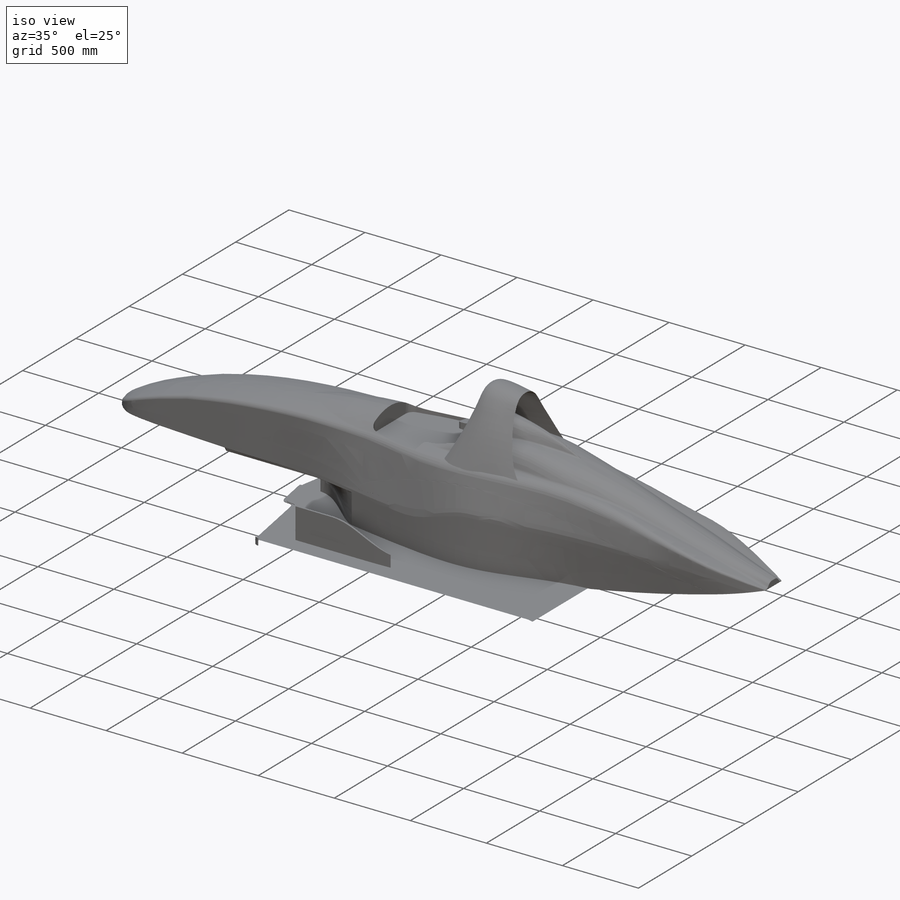
[diagram: iso view]
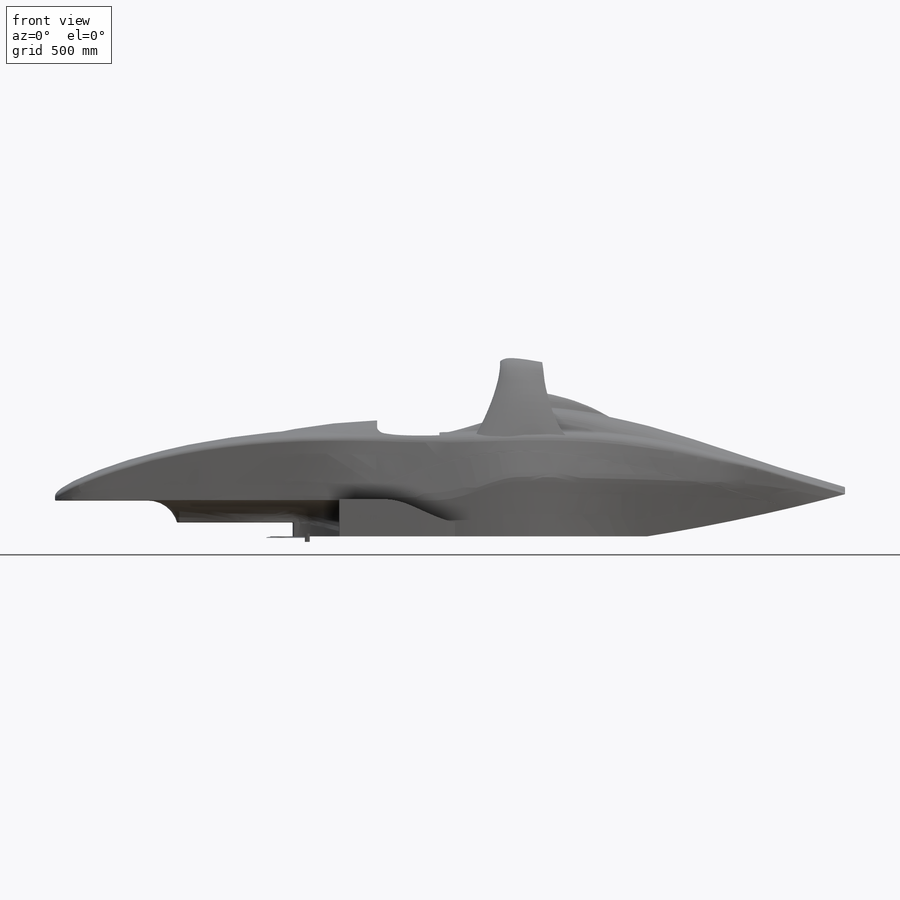
[diagram: front view]
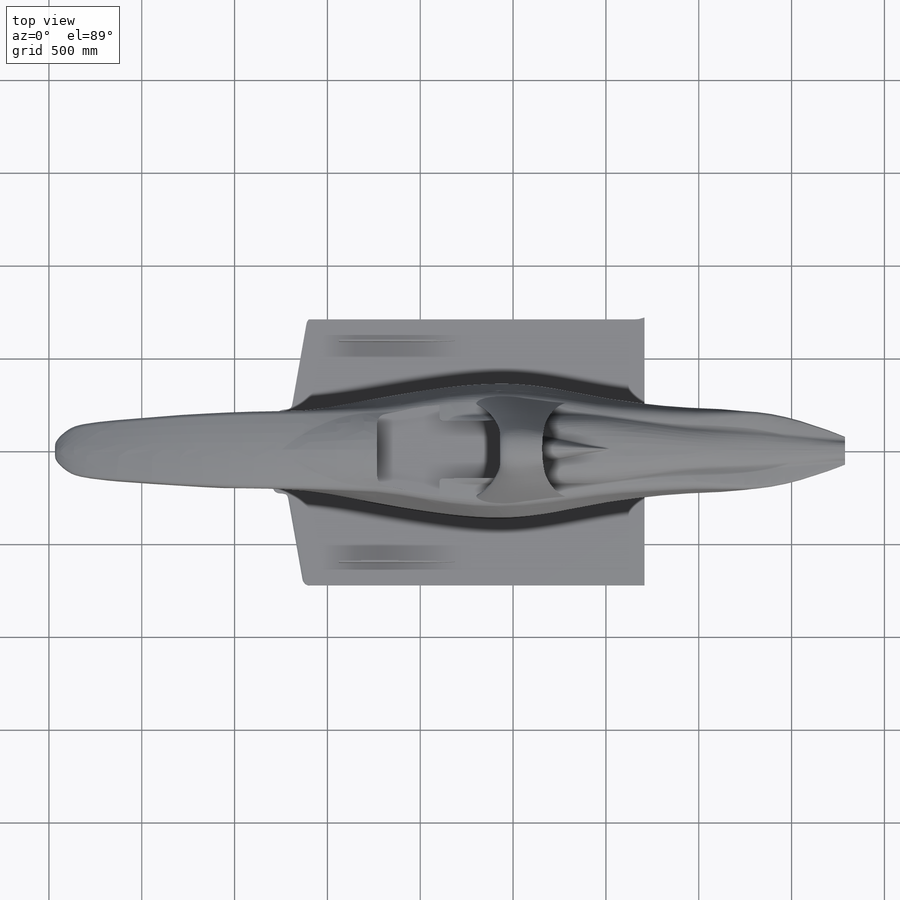
[diagram: top view]
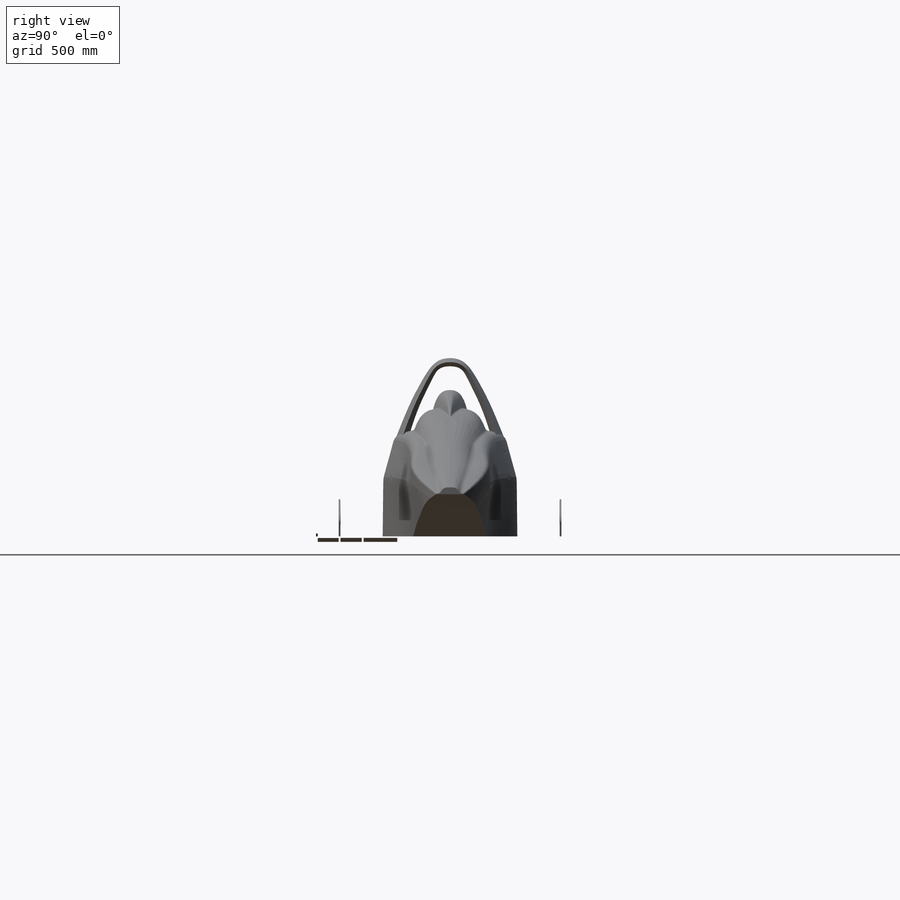
[diagram: right view]
SOLIDWORKS PART (.sldprt)
format: sldprt  version: not decoded by parser v0  size: 79,084,544 bytes
history: native  units: mm
features: sketch x117, plane x45, fillet x27, cut_extrude x22, extrude x15, sweep x13, mirror x9, shell x7, boolean_combine x4, surface_op x2, material x1, cut_revolve x1, revolve x1 (+20 scaffold rows collapsed; 9 parser-record rows omitted)
feature tree (293):
  scaffold x20  (default folders/planes/origin — collapsed)
  material  "6061-T6 (SS)"
  parser-record x9  (decoder bookkeeping rows leaked as tree rows — omitted from the tree; the rows remain in map.json)
  plane  "Plane0"  Offset=967mm
  plane  "Plane0A"  Offset=100mm
  plane  "Plane1"  Offset=0mm
  plane  "Plane2"  Offset=0mm
  plane  "Plane3"  Offset=0mm
  plane  "Plane4"  Offset=0mm
  plane  "Plane4A"  Offset=188.5mm
  plane  "Plane5"  Offset=0mm
  plane  "Plane5A"  Offset=235mm
  plane  "Plane6"  Offset=0mm
  plane  "Plane6A"  Offset=167mm
  plane  "Plane6B"  Offset=266.9mm
  plane  "Plane7"  Offset=533.8mm
  plane  "Plane14"  Offset=214.35mm
  plane  "Plane8"  Offset=0mm
  plane  "Plane10"  Offset=0mm
  plane  "Plane11"  Offset=775mm
  plane  "PlaneCarBottom"  Offset=48.8mm
  sketch  "Sketch0"  dims[D3=15.0mm D1=56.0mm D2=255.0mm D4=25.0mm D5=20.0mm]
  sketch  "Sketch1"  dims[c1.D2=12.7mm c1.D5=25.0mm c1.D1=56.0mm c2.D2=15.0mm c2.D3=25.0mm c3.D2=40.0mm c3.D4=65.0mm c3.D5=10.0mm c3.D1=15.0mm]
  sketch  "Sketch2"  dims[c1.D2=12.7mm c1.D3=~480.357143mm c1.D5=30.0mm c2.D2=195.0mm c2.D1=15.0mm c3.D2=20.0mm c3.D3=30.0mm c3.D4=285.0mm c3.D1=15.0mm]
  sketch  "Sketch3"  dims[c1.D2=12.7mm c1.D3=12.7mm c1.D5=35.0mm c1.D1=30.0mm c2.D2=20.0mm c2.D3=25.0mm c2.D4=56.0mm c2.D1=15.0mm]
  sketch  "Sketch4"  dims[c1.D2=12.7mm c1.D3=500.0mm c1.D5=500.0mm c1.D7=50.0mm c1.D8=100.0mm c2.D2=250.0mm c2.D4=0.0mm c2.D5=~496.84435mm c3.D4=15.0mm c3.D3=12.0mm c3.D1=56.0mm c3.D2=270.0mm c3.D5=220.0mm c3.D6=267.0mm c4.D1=15.0mm]
  sketch  "Sketch5"  dims[c1.D2=12.7mm c1.D3=12.7mm c1.D6=60.0mm c1.D7=100.0mm c2.D2=560.0mm c2.D3=23.0mm c2.D4=20.0mm c2.D1=15.0mm c2.D5=56.0mm c3.D1=12.7mm]
  sketch  "Sketch6"  dims[c1.D6=70.0mm c1.D7=100.0mm c1.D1=19.0mm c1.D2=34.0mm c2.D1=19.0mm c2.D2=24.0mm c2.D3=580.0mm c2.D4=550.0mm c2.D5=~288.883291mm c3.D3=565.0mm c3.D4=535.0mm c3.D1=56.0mm c3.D8=365.4mm c4.D1=17.0mm]
  sketch  "Sketch7"  dims[c1.D7=65.0mm c1.D8=100.0mm c1.D2=552.0mm c1.D3=537.0mm c1.D4=225.0mm c1.D1=269.0mm c1.D5=220.0mm c1.D6=56.0mm c1.D9=~365.403535mm c2.D3=595.8mm c2.D2=610.8mm c2.D1=12.7mm]
  sketch  "Sketch8"  dims[c1.D8=50.0mm c1.D9=100.0mm c1.D1=20.0mm c1.D2=205.0mm c2.D1=390.0mm c2.D3=405.0mm c2.D4=175.0mm c2.D5=15.0mm c2.D6=~229.207859mm c2.D7=~259.394203mm c3.D1=225.0mm c3.D5=394.0mm c3.D7=175.0mm c3.D3=399.0mm c4.D7=56.0mm]
  sketch  "Sketch9"  dims[c1.D6=19.0mm c1.D7=100.0mm c1.D2=120.0mm c1.D3=80.0mm c1.D4=~202.382796mm c1.D1=47.0mm c2.D4=195.0mm c2.D5=56.0mm c2.D1=12.7mm]
  sketch  "Sketch10"  dims[D4=6.0mm D1=75.0mm D2=70.0mm D3=56.0mm D5=220.8mm]
  sketch  "3DSketch2"  dims[c1.D1=~267.390004mm c1.D2=267.0mm c1.D3=267.0mm c1.D4=267.0mm c1.D5=~263.577764mm c1.D8=267.0mm c1.D6=267.0mm c1.D7=320.0mm c2.D5=128.0mm]
  plane  "PlaneBodyBottom"  Offset=58.8mm
  sketch  "Sketch129"
  cut_extrude  "CutBodyBottomPlane"  Depth=0.1mm
  sketch  "Sketch13"  dims[D1=133.0mm D2=141.0mm D3=70.0mm D4=251.0mm D5=275.0mm]
  cut_extrude  "Cut-ExtrudeBottom"  [1 undecoded]
  sketch  "Sketch19"  dims[D1=90.0mm D2=15.0mm D3=64.0mm]
  sketch  "Sketch15"  dims[c1.D2=599.0mm c1.D1=680.2mm c1.D3=203.0mm c2.D1=19.0mm]
  sketch  "Sketch16"  dims[D1=~517.40517mm]
  sketch  "Sketch17"  dims[D1=635.0mm]
  cut_revolve  "Cut-RevolveKeelNose"  Angle=90deg
  sketch  "Sketch24"
  sketch  "Sketch21"  dims[D1=3.0mm D2=3.0mm]
  sketch  "Sketch22"  dims[D1=3.0mm D2=3.0mm]
  sketch  "Sketch23"  dims[D1=251.122mm]
  sketch  "3DSketch4"
  plane  "PlaneDriverCoolingDuct"
  sketch  "SketchDriverCoolingDuctSides"  dims[D4=~66.36714mm D1=25.0mm D2=100.0mm D3=150.0mm]
  sketch  "Sketch81"  dims[D1=30.0mm]
  surface_op  "Surface-Extrude1"
  cut_extrude  "CutDriverCoolingDuct"  [1 undecoded]
  sketch  "Sketch25"
  cut_extrude  "Cut-ExtrudeBow"  [1 undecoded]
  sketch  "Sketch66"  dims[c1.D1=230.0mm c1.D2=205.0mm c2.D2=~1.109689deg c2.D3=~789.345485mm c3.D2=582.0mm c3.D3=684.0mm]
  sketch  "3DSketch14"
  sketch  "Sketch50"  dims[D1=535.0mm D2=216.0mm D3=65.0mm D4=90.0mm]
  sketch  "Sketch52"  dims[D1=535.0mm D2=80.0mm D3=216.0mm D4=65.0mm]
  sketch  "Sketch51"  dims[c1.D1=535.0mm c1.D2=160.0mm c1.D3=~57.669344mm c2.D3=~237.79434deg c3.D3=65.0mm c3.D4=195.0mm]
  sketch  "Sketch49"  dims[D1=535.0mm D2=210.0mm D3=200.0mm D4=65.0mm]
  sketch  "Sketch43"  dims[c1.D3=~198.516662mm c1.D5=~358.128759mm c1.D1=~202.214358mm c2.D1=~0.978305deg c3.D1=~534.624978mm c3.D2=200.0mm c3.D3=200.0mm c3.D4=65.0mm c3.D5=90.0deg]
  sketch  "Sketch44"  dims[c1.D3=~211.71819mm c1.D1=130.0mm c1.D2=200.0mm c2.D3=60.0mm c2.D4=200.0mm c2.D1=~488.415607mm c3.D4=200.0mm]
  sketch  "Sketch47"  dims[D1=108.0mm D2=135.0mm D3=35.0mm D4=460.0mm]
  sketch  "Sketch45"  dims[c1.D1=103.0mm c1.D2=~6.407375mm c1.D3=150.0mm c2.D2=52.0mm c2.D3=390.0mm c2.D4=25.0mm c2.D1=108.0mm c3.D3=442.0mm c3.D2=67.0mm]
  sketch  "3DSketch10"
  sketch  "Sketch61"  dims[c1.D4=40.0mm c1.D1=300.0mm c1.D2=50.0mm c1.D3=25.0mm c2.D4=25.0mm c2.D1=324.0mm c2.D3=5.0mm]
  sketch  "Sketch58"  dims[D1=860.0mm D2=~653.297371mm]
  sketch  "Sketch59"  dims[D1=~653.297371mm D2=140.0mm]
  sketch  "Sketch60"  dims[D1=660.0mm]
  sketch  "3DSketch18"
  plane  "Plane16"
  plane  "Plane17"
  plane  "Plane19"  Offset=20mm
  sketch  "Sketch68"  dims[D1=180.0mm]
  plane  "Plane18"
  sketch  "Sketch69"  dims[D1=50.0mm D2=11.0mm D3=~28.962373mm]
  surface_op  "Surface-ExtrudeAirIntakeBottom"
  cut_extrude  "Cut-ExtrudeEngineAirIntake"  [1 undecoded]
  plane  "PlaneRollbarFairingBottom"  Offset=580mm
  sketch  "Sketch26"
  sketch  "SketchRollbarTubeTop"
  plane  "PlaneCockpitOpeningSketch"  Offset=580mm
  sketch  "Sketch18"  dims[c1.D1=100.0mm c1.D2=50.0mm c2.D1=20.0mm c2.D3=850.0mm c2.D4=400.0mm c2.D5=155.0mm c3.D3=212.0mm c3.D4=238.0mm c3.D6=65.0mm]
  sketch  "Sketch28"
  cut_extrude  "Cut-ExtrudeCockpitOpening"  [1 undecoded]
  fillet  "Fillet107"  Radius=20mm
  sketch  "3DSketchRollbarGuides"  dims[c1.D1=~89.940388mm c1.D5=105.0mm c1.D2=~79.242758mm c1.D6=105.0mm c1.D3=105.0mm c1.D4=105.0mm c2.D1=~66.837879mm c2.D2=105.0mm c2.D5=~65.631824mm c3.D2=105.0mm c3.D1=275.0mm]
  plane  "PlaneRollbarFairing2"
  plane  "PlaneRollbarFairing3"
  sketch  "3DSketch7"  dims[c1.D1=~107.935166mm c1.D2=105.0mm c2.D1=~93.008408mm c2.D4=105.0mm c2.D2=~123.247546mm c3.D4=105.0mm c3.D3=~45.595038mm c3.D2=25.0mm c4.D4=~27.155749mm c4.D1=98.0mm]
  sketch  "Sketch30"  dims[c1.D2=~22.240135mm c1.D1=20.0mm c2.D2=14.0mm c2.D3=469.0mm]
  sketch  "Sketch29"  dims[c1.D1=~100.034651mm c1.D2=100.0mm c1.D3=~38.234138mm c1.D4=~16.237395mm c1.D5=17.5mm c1.D6=17.5mm c1.D7=22.0mm c2.D3=70.0mm c2.D1=22.0mm c2.D2=~282.010232mm]
  mirror  "MirrorRollbarFairing"
  shell  "ShellRollbarFairing"  Thickness=1.5mm
  plane  "PlaneRollbarRearSupportFairing"  Offset=560mm
  sketch  "3DSketch8"
  sketch  "Sketch31"  dims[D1=28.0mm D2=28.0mm D3=~49.705144mm D4=90.0mm]
  sweep  "SweepRearRollbarSupport"
  plane  "Plane23"
  sketch  "Sketch33"  dims[c1.D4=~196.489211mm c1.D8=~196.489211mm c1.D9=~272.301277mm c1.D1=300.0mm c1.D2=40.0mm c1.D3=60.0mm c2.D4=~63.938809mm c2.D5=200.0mm c2.D6=170.0mm c2.D7=180.0mm c2.D8=57.0mm c2.D1=150.0mm c3.D5=~256.430824mm c3.D4=130.0mm c3.D8=65.0mm c4.D4=130.0mm c4.D6=150.0mm c4.D7=120.0mm c4.D8=65.0mm c4.D9=393.0mm]
  sketch  "Sketch34"  dims[c1.D1=~71.605356mm c1.D2=~153.180566mm c1.D3=~342.33872mm c1.D4=~100.29826mm c1.D5=360.0mm c1.D6=~122.121896mm c1.D7=~280.586603mm c1.D8=~335.767579mm c1.D9=~337.015944mm c1.D10=57.0mm c2.D3=130.0mm c2.D2=90.0mm c3.D3=~74.286993mm c3.D6=474.0mm]
  sketch  "Sketch35"  dims[c1.D2=~366.09828mm c1.D1=57.0mm c2.D2=100.0mm c2.D3=250.0mm c2.D4=130.0mm c2.D5=250.0mm c2.D6=70.0mm c2.D7=290.0mm c2.D8=330.0mm c3.D3=115.0mm c3.D5=140.0mm c3.D1=410.0mm c4.D3=~7.173732mm c4.D8=~6.781812mm]
  plane  "Plane24"
  sketch  "Sketch92"  dims[c1.D1=10.0mm c1.D2=10.0mm c2.D1=230.0mm c2.D2=70.0mm c2.D3=180.0mm c2.D4=~31.150195mm]
  sketch  "Sketch90"
  plane  "Plane22"
  sketch  "Sketch36"  dims[c1.D1=130.0mm c1.D2=160.0mm c1.D3=80.0mm c1.D4=~200.175755mm c1.D5=~32.940634mm c1.D6=~126.972767mm c1.D7=220.0mm c1.D8=73.0mm c2.D6=132.0mm c2.D4=80.0mm c2.D7=~149.677368mm c2.D2=60.0mm c3.D4=190.0mm c3.D5=290.0mm]
  plane  "Plane33"  Offset=2700mm
  sketch  "Sketch126"  dims[D6=~378.635855mm D1=280.0mm D2=140.0mm D3=267.0mm D4=60.0mm D5=215.0mm]
  plane  "Plane34"  Offset=3050mm
  sketch  "Sketch127"  dims[D1=~3.659925mm D2=~1.799269mm D3=140.0mm D4=~182.152942mm]
  sketch  "3DSketch9"
  sketch  "Sketch93"  dims[c1.D4=~11.18454mm c1.D2=12.7mm c1.D1=0.0mm c2.D2=20.0mm c2.D3=0.0mm]
  cut_extrude  "Cut-ExtrudeSidepodInlet"  Depth=4mm
  plane  "Plane27"  Offset=500mm
  sketch  "Sketch109"  dims[D1=25.0mm D2=25.0mm D3=25.0mm]
  plane  "Plane31"
  sketch  "Sketch116"  dims[D1=12.0mm]
  sketch  "3DSketch20"
  sketch  "Sketch111"
  sweep  "Curve8"
  plane  "Plane29"
  sketch  "Sketch112"  dims[D1=12.0mm]
  sketch  "3DSketch21"
  sketch  "Sketch113"
  sweep  "Curve9"
  plane  "Plane30"
  sketch  "Sketch114"  dims[D1=12.0mm]
  sketch  "3DSketch23"
  fillet  "Fillet101"  Radius=8mm
  boolean_combine  "Combine4"
  sketch  "Sketch54"  dims[c1.D5=~15818.03837mm c1.D3=~1128.917031mm c2.D3=11.6deg c3.D3=~210.022806mm c4.D3=~11.005141deg c5.D3=~1112.962354mm c6.D3=12.0deg c6.D4=~183.073205mm c7.D4=15.0deg c7.D1=0.0mm c7.D2=0.0mm]
  cut_extrude  "Cut-ExtrudeCleanBottom"  [1 undecoded]
  fillet  "Fillet11"  Radius=25mm
  fillet  "Fillet12"  Radius=4mm
  fillet  "Fillet27"  Radius=12mm
  fillet  "Fillet28"  Radius=25mm
  fillet  "Fillet106"  Radius=8mm
  fillet  "Fillet32"  Radius=5mm
  fillet  "Fillet33"  Radius=5mm
  fillet  "Fillet67"  Radius=4mm
  fillet  "Fillet68"  Radius=4mm
  fillet  "Fillet76"  Radius=4mm
  fillet  "Fillet78"  Radius=4mm
  sketch  "Sketch117"  dims[D1=3.0mm D2=3.0mm D3=3.0mm]
  sketch  "3DSketch24"  dims[c1.D1=10.0mm c2.D1=~14.867602mm]
  sketch  "3DSketch24<4>"
  sketch  "3DSketch24<7>"
  fillet  "Fillet105"  Radius=3mm
  shell  "ShellSidepod"  Thickness=3mm
  sketch  "3DSketch17"
  sketch  "Sketch95"  dims[D1=3.0mm D2=3.0mm]
  plane  "PlaneTubBottom"  Offset=58.8mm
  sketch  "Sketch37"  dims[c1.D1=40.0mm c1.D2=40.0mm c1.D7=40.0mm c1.D8=40.0mm c2.D7=10.0mm c2.D6=40.0mm c2.D1=310.0mm c2.D2=475.0mm c2.D3=475.0mm c2.D4=722.0mm c2.D5=290.0mm c3.D6=200.0mm c3.D2=50.0mm c3.D9=45.0mm c3.D10=~86.736738mm c3.D7=~1080.00046mm c4.D7=~179.947096deg c5.D7=140.0mm c5.D10=475.0mm c5.D3=475.0mm c6.D10=~1079.95629mm c6.D3=475.0mm c6.D8=~28.801481mm c7.D3=475.0mm c7.D8=~1080.00046mm c7.D9=0.0mm c7.D10=250.0mm c7.D7=125.0mm c7.D11=10.0deg c7.D12=~10.626611deg c8.D10=10.0deg]
  extrude  "ExtrudeFlatFloor"  Depth=30mm
  plane  "Plane21"  Offset=10mm
  sketch  "Sketch85"  dims[c1.D1=22.0mm c1.D2=0.0mm c1.D3=10.0mm c2.D2=22.0mm c2.D3=400.0mm c2.D4=~885.184094mm c2.D5=~481.608783mm c3.D4=350.0mm c3.D5=950.0mm c3.D6=~925.934927mm]
  cut_extrude  "Cut-Extrude10"  [1 undecoded]
  sketch  "Sketch86"  dims[D1=10.0mm D2=8.0mm]
  cut_extrude  "Cut-Extrude17"  [1 undecoded]
  sketch  "Sketch96"  dims[D1=30.0mm]
  sweep  "CutSweepFloorFrontEdge"
  sketch  "Sketch41"  dims[c1.D1=466.0mm c1.D2=~819.716796mm c2.D1=10.0mm]
  extrude  "ExtrudeBargeBoard"  Depth=500mm
  sketch  "Sketch42"  dims[c1.D1=140.0mm c1.D2=310.0mm c2.D1=200.0mm c2.D2=75.0mm]
  cut_extrude  "Cut-ExtrudeBargeBoard"  [1 undecoded]
  sketch  "Sketch55"  dims[c1.D3=4.0mm c1.D4=4.0mm c1.D1=10.0mm c1.D2=40.0mm c1.D5=40.0mm c2.D2=50.0mm c2.D1=10.0mm]
  extrude  "ExtrudeFloorSideDam"  Depth=15mm
  sketch  "Sketch105"
  cut_extrude  "Cut-Extrude25"  Depth=0mm ModelUUID=0mm UUID=0mm
  sweep  "ecb8dbd9-9085-4e60-884d-f1849546cae8"  UUID=0mm ModelUUID=0mm
  sweep  "9159d59c-64a7-4227-ae95-04056fbc8c89"  UUID=0mm ModelUUID=0mm
  sweep  "b0722c9b-d6d1-4b60-ac0c-1b644e7f5669"  UUID=0mm ModelUUID=0mm
  sketch  "Sketch106"
  cut_extrude  "Cut-Extrude26"  [1 undecoded]
  sketch  "Sketch101"  dims[D1=50.0mm D2=50.0mm]
  extrude  "Boss-Extrude2"  Depth=25mm
  sketch  "Sketch62"
  sketch  "Sketch64"  dims[D1=3.0mm D2=75.0mm D3=50.0mm D4=3.0mm D5=75.0mm D6=50.0mm D7=3.0mm D8=75.0mm D9=50.0mm D10=3.0mm D11=75.0mm D12=50.0mm D13=3.0mm D14=75.0mm D15=50.0mm D16=3.0mm D17=75.0mm D18=50.0mm D19=3.0mm D20=75.0mm D21=50.0mm D22=3.0mm D23=75.0mm D24=50.0mm D25=3.0mm D26=75.0mm D27=50.0mm]
  extrude  "Boss-Extrude1"  Depth=25mm
  sketch  "Sketch74"  dims[c1.D2=50.0mm c1.D3=~1100.188696mm c2.D3=~179.990417deg c3.D3=10.0mm c3.D1=10.0mm c4.D3=~10.187345mm c4.D1=10.0mm c4.D2=50.0mm c5.D1=10.0mm]
  extrude  "ExtrudeDiffuserTop"  Depth=475mm
  sketch  "Sketch71"  dims[D1=5.0mm D2=50.0mm D3=0.0mm]
  extrude  "ExtrudeCenterStrake"  Depth=20mm
  sketch  "Sketch40"  dims[D1=5.0mm]
  sketch  "Sketch70"  dims[D2=290.0mm D3=300.0mm D1=0.0mm]
  extrude  "ExtrudeDiffuserLeftSide"  Depth=10mm
  sketch  "Sketch72"  dims[D1=75.0mm]
  cut_extrude  "Cut-Extrude5"  [1 undecoded]
  boolean_combine  "Combine2"
  fillet  "FilletDiffuserLeftFront"  [1 undecoded]
  sketch  "Sketch73"  dims[c1.D1=50.0mm c1.D2=10.0mm c1.D3=237.0mm c2.D1=~49.999999mm c2.D3=279.0mm]
  extrude  "ExtrudeIntermediateStrake"  Depth=20mm
  fillet  "Fillet34"  Radius=25mm
  fillet  "Fillet35"  Radius=25mm
  fillet  "Fillet77"  Radius=20mm
  sketch  "Sketch89"
  boolean_combine  "Combine3"
  fillet  "Fillet81"  Radius=4mm
  sketch  "Sketch100"  dims[D1=8.0mm D2=75.0mm]
  cut_extrude  "Cut-Extrude16"  [1 undecoded]
  sketch  "Sketch102"
  cut_extrude  "Cut-Extrude22"  Depth=22mm
  fillet  "Fillet92"  Radius=10mm
  fillet  "Fillet93"  Radius=18mm
  fillet  "Fillet88"  Radius=10mm
  fillet  "Fillet89"  Radius=13mm
  fillet  "Fillet90"  Radius=50mm
  sketch  "Sketch79"
  cut_extrude  "Cut-Extrude23"  [1 undecoded]
  sketch  "Sketch103"
  extrude  "Boss-Extrude7"  [1 undecoded]
  sketch  "Sketch104"  dims[D1=10.0mm]
  extrude  "Boss-Extrude6"  [1 undecoded]
  fillet  "Fillet95"  Radius=3mm
  sketch  "3DSketch19"  dims[D1=190.0mm]
  plane  "PlaneDiffuserLouver"
  sketch  "Sketch107"
  cut_extrude  "Cut-ExtrudeDiffuserLouver"  Depth=30mm
  fillet  "FilletDiffuserLouver"  Radius=3mm
  mirror  "MirrorDiffuser"
  shell  "Shell10"  Thickness=1.5mm
  mirror  "MirrorBody"
  mirror  "MirrorFollbarFairing"
  mirror  "MirrorFlatBottom"
  mirror  "MirrorBargeBoard"
  plane  "Plane26"  Offset=750mm
  mirror  "Mirror2"
  shell  "ShellBody"  Thickness=3mm
  shell  "ShellFlatFloor"  Thickness=0.762mm
  shell  "ShellBargeBoardLeft"  Thickness=0.762mm
  shell  "ShellBargeBoardRight"  Thickness=0.762mm
  sweep  "d70cb17c-6134-4efd-b197-45992276d752"  UUID=0mm ModelUUID=0mm
  sweep  "7ba3ae25-c431-40b5-bafd-2258da530697"  UUID=0mm ModelUUID=0mm
  sweep  "a0a08546-63fe-49fb-a0da-70ba467a41ad"  UUID=0mm ModelUUID=0mm
  sweep  "d2053b36-0817-4f45-9231-9041e4613ba9"  UUID=0mm ModelUUID=0mm
  sweep  "bd9f66e8-0414-4396-af2b-b487858fc927"  UUID=0mm ModelUUID=0mm
  sweep  "291a6bc1-2367-48b8-8107-28d6b1508f2e"  UUID=0mm ModelUUID=0mm
  fillet  "Fillet84"  Radius=5mm
  sketch  "Sketch115"  dims[D2=115.0mm D1=1359.6mm D3=797.0mm D4=~600.511084mm]
  revolve  "RevolveHelmet4CFD"  Angle=360deg
  boolean_combine  "CombineEverything4CFD"
  plane  "PlaneRadiatorFinBottom"
  plane  "PlaneRadiatorFinTop"  Offset=350mm
  sketch  "Sketch118"  dims[D1=3.0mm D3=20.0mm D2=23.0]
  extrude  "ExtrudeRadiatorFins"  [1 undecoded]
  sketch  "Sketch119"  dims[D2=100.0mm D1=10.0mm]
  extrude  "ExtrudeTurningVane"  Depth=100mm
  mirror  "MirrorTurningVane"
  plane  "Plane32"  Offset=632mm
  sketch  "Sketch125"  dims[D1=400.0mm D2=~1456.196166mm D3=948.0mm]
  extrude  "Boss-Extrude11"  Depth=10mm
  mirror  "Mirror3"
  sketch  "SketchCrossSections"  dims[D2=100.0mm D1=43.0]
  sketch  "Sketch121"  dims[c1.D1=38.1mm c1.D4=~33.251536mm c1.D2=250.0mm c1.D3=150.0mm c2.D4=2.4mm]
  extrude  "ExtrudeBuckStringers"  Depth=900mm
  sketch  "Sketch122"  dims[D1=4.0mm D3=100.0mm D2=42.0]
  sketch  "Sketch123"  dims[D2=100.0mm D1=8.0 D3=2.0 D4=8.0]
  sketch  "Sketch124"  dims[c1.D1=4.0mm c1.D2=4500.0mm c2.D1=4.0mm c2.D2=130.0mm c2.D3=230.0mm c2.D4=150.0mm c2.D5=125.0mm c3.D3=355.0mm c3.D4=505.0mm c3.D5=1931.0mm]
  cut_extrude  "Cut-Extrude27"  Depth=300mm
  sketch  "Sketch130"  dims[D1=350.0mm D2=900.0mm]
  cut_extrude  "Cut-Extrude29"  Depth=425mm
  cut_extrude  "Cut-Extrude28"  Depth=425mm
  sketch  "Sketch131"  dims[D1=250.0mm D2=250.0mm]
  cut_extrude  "Cut-Extrude30"  Depth=325.1mm
decode coverage: 153 of 218 modeling features carry decoded parameters
note: ~ marks probable driven/reference dimensions
note: 17 parameter values undecoded
summary: no parameter record found for 17 features; profile_refs inferred from adjacent sketches, not decoded
note: suppression state not decoded; provenance and decode notes live in map.json
